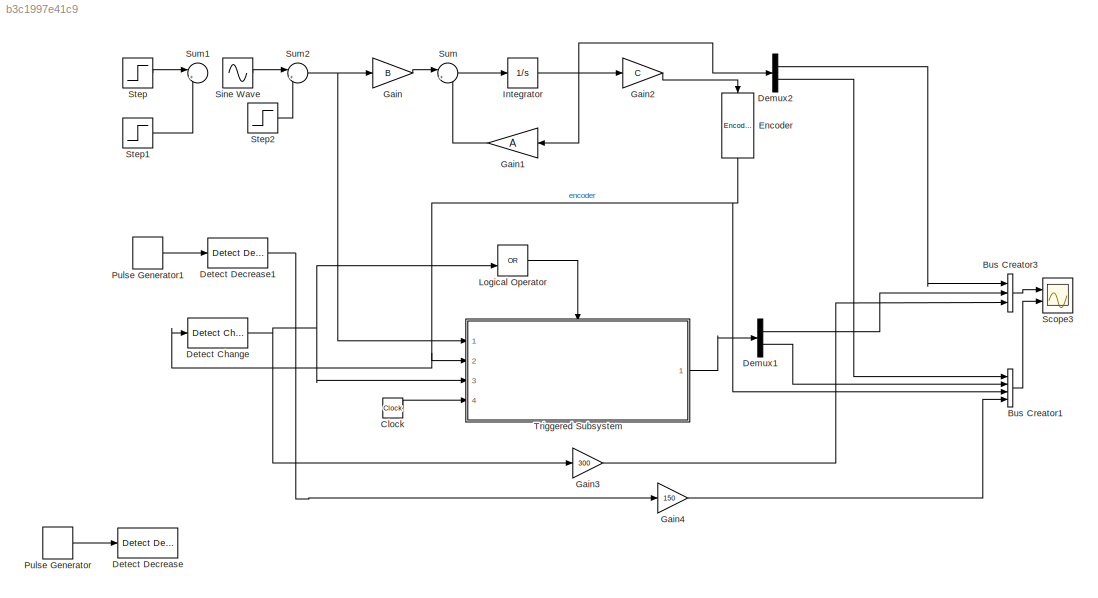
MODEL slx_b3c1997e41c9
KIND model
BLOCK [BusCreator] Bus Creator1
  DisplayOption = bar
  Ports = [4, 1]
BLOCK [BusCreator] Bus Creator3
  DisplayOption = bar
  Inputs = 3
  Ports = [3, 1]
BLOCK [Clock] Clock
BLOCK [Demux] Demux1
  DisplayOption = bar
  Outputs = 2
  Ports = [1, 2]
BLOCK [Demux] Demux2
  DisplayOption = bar
  Outputs = 2
  Ports = [1, 2]
BLOCK [Reference] Detect Change  REF=simulink/Logic and Bit
Operations/Detect
Change
  InputProcessing = Inherited
  OutDataTypeStr = boolean
  Ports = [1, 1]
  SourceBlock = simulink/Logic and Bit\nOperations/Detect\nChange
  SourceType = Detect Change
  vinit = 0
BLOCK [Reference] Detect Decrease  REF=simulink/Logic and Bit
Operations/Detect
Decrease
  InputProcessing = Inherited
  OutDataTypeStr = boolean
  Ports = [1, 1]
  SourceBlock = simulink/Logic and Bit\nOperations/Detect\nDecrease
  SourceType = Detect Decrease
  vinit = 0.0
BLOCK [Reference] Detect Decrease1  REF=simulink/Logic and Bit
Operations/Detect
Decrease
  InputProcessing = Inherited
  OutDataTypeStr = boolean
  Ports = [1, 1]
  SourceBlock = simulink/Logic and Bit\nOperations/Detect\nDecrease
  SourceType = Detect Decrease
  vinit = 0.0
BLOCK [Reference] Encoder  REF=Encoder/Encoder
  Nr = 3
  Ports = [1, 1]
  SourceBlock = Encoder/Encoder
  SourceType = Encoder de quadratura
BLOCK [Gain] Gain
  Gain = B
  Multiplication = Matrix(K*u)
  OutDataTypeStr = Inherit: Inherit via internal rule
  ParamDataTypeStr = Inherit: Inherit via internal rule
  SaturateOnIntegerOverflow = off
BLOCK [Gain] Gain1
  Gain = A
  Multiplication = Matrix(K*u)
  OutDataTypeStr = Inherit: Inherit via internal rule
  ParamDataTypeStr = Inherit: Inherit via internal rule
  SaturateOnIntegerOverflow = off
BLOCK [Gain] Gain2
  Gain = C
  Multiplication = Matrix(K*u)
  OutDataTypeStr = Inherit: Inherit via internal rule
  ParamDataTypeStr = Inherit: Inherit via internal rule
  SaturateOnIntegerOverflow = off
BLOCK [Gain] Gain3
  Gain = 300
  OutDataTypeStr = double
  ParamDataTypeStr = Inherit: Inherit via internal rule
  SaturateOnIntegerOverflow = off
BLOCK [Gain] Gain4
  Gain = 150
  OutDataTypeStr = double
  ParamDataTypeStr = Inherit: Inherit via internal rule
  SaturateOnIntegerOverflow = off
BLOCK [Integrator] Integrator
  Ports = [1, 1]
BLOCK [Logic] Logical Operator
  AllPortsSameDT = off
  Operator = OR
  OutDataTypeStr = boolean
  Ports = [2, 1]
BLOCK [DiscretePulseGenerator] Pulse Generator
  Period = 0.5
  Ports = [0, 1]
  PulseType = Time based
  PulseWidth = 50
BLOCK [DiscretePulseGenerator] Pulse Generator1
  Period = 0.05
  Ports = [0, 1]
  PulseType = Time based
  PulseWidth = 50
BLOCK [Scope] Scope3
  DataFormat = StructureWithTime
  Floating = off
  LegendLocations = 0.91365     0.89046      0.0675    0.063707\n0.91365     0.41944      0.0675    0.083025
  LimitDataPoints = off
  NumInputPorts = 2
  Ports = [2]
  SampleTime = 0
  SaveName = ScopeData2
  ShowLegends = on
  TimeRange = 10
  YMax = 50000~5
  YMin = -35000~-5
BLOCK [Sin] Sine Wave
  Amplitude = 20
  Frequency = 0.5
  Ports = [0, 1]
  SampleTime = 0
BLOCK [Step] Step
  After = 20
  SampleTime = 0
  Time = 0
BLOCK [Step] Step1
  After = -40
  SampleTime = 0
  Time = 5
BLOCK [Step] Step2
  After = 7
  SampleTime = 0
  Time = 0
BLOCK [Sum] Sum
  IconShape = round
  InputSameDT = off
  Inputs = |++
  OutDataTypeStr = Inherit: Inherit via internal rule
  Ports = [2, 1]
  SaturateOnIntegerOverflow = off
BLOCK [Sum] Sum1
  IconShape = round
  InputSameDT = off
  Inputs = |++
  OutDataTypeStr = Inherit: Inherit via internal rule
  Ports = [2, 1]
  SaturateOnIntegerOverflow = off
BLOCK [Sum] Sum2
  IconShape = round
  InputSameDT = off
  Inputs = |++
  OutDataTypeStr = Inherit: Inherit via internal rule
  Ports = [2, 1]
  SaturateOnIntegerOverflow = off
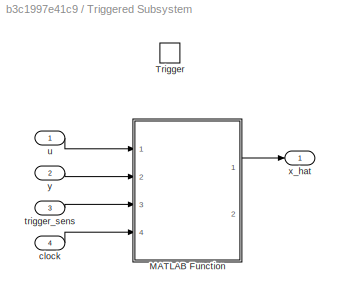
BLOCK [SubSystem] Triggered Subsystem
  FunctionWithSeparateData = off
  MaskHideContents = off
  MinAlgLoopOccurrences = off
  Opaque = off
  Ports = [4, 1, 0, 1]
  PropExecContextOutsideSubsystem = off
  RTWSystemCode = Auto
  RequestExecContextInheritance = off
  TreatAsAtomicUnit = on
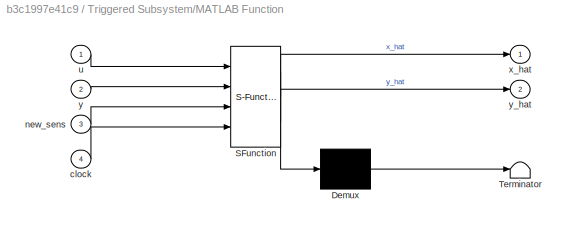
BLOCK [SubSystem] Triggered Subsystem/MATLAB Function
  ErrorFcn = Stateflow.Translate.translate
  FunctionWithSeparateData = off
  MaskHideContents = off
  MinAlgLoopOccurrences = off
  Opaque = off
  PermitHierarchicalResolution = ExplicitOnly
  Ports = [4, 2]
  PropExecContextOutsideSubsystem = off
  RTWSystemCode = Auto
  RequestExecContextInheritance = off
  SFBlockType = MATLAB Function
  TreatAsAtomicUnit = on
BLOCK [Demux] Triggered Subsystem/MATLAB Function/ Demux 
  Outputs = 1
  Ports = [1, 1]
BLOCK [S-Function] Triggered Subsystem/MATLAB Function/ SFunction 
  EnableBusSupport = on
  FunctionName = sf_sfun
  PortCounts = [4 3]
  Ports = [4, 3]
  Tag = Stateflow S-Function observador_multirate_4 2
BLOCK [Terminator] Triggered Subsystem/MATLAB Function/ Terminator 
BLOCK [Inport] Triggered Subsystem/MATLAB Function/clock
  IconDisplay = Port number
  Port = 4
BLOCK [Inport] Triggered Subsystem/MATLAB Function/new_sens
  IconDisplay = Port number
  Port = 3
BLOCK [Inport] Triggered Subsystem/MATLAB Function/u
  IconDisplay = Port number
BLOCK [Outport] Triggered Subsystem/MATLAB Function/x_hat
  IconDisplay = Port number
BLOCK [Inport] Triggered Subsystem/MATLAB Function/y
  IconDisplay = Port number
  Port = 2
BLOCK [Outport] Triggered Subsystem/MATLAB Function/y_hat
  IconDisplay = Port number
  Port = 2
BLOCK [TriggerPort] Triggered Subsystem/Trigger
  Ports = []
  StatesWhenEnabling = held
BLOCK [Inport] Triggered Subsystem/clock
  IconDisplay = Port number
  Port = 4
BLOCK [Inport] Triggered Subsystem/trigger_sens
  IconDisplay = Port number
  Port = 3
BLOCK [Inport] Triggered Subsystem/u
  IconDisplay = Port number
BLOCK [Outport] Triggered Subsystem/x_hat
  IconDisplay = Port number
BLOCK [Inport] Triggered Subsystem/y
  IconDisplay = Port number
  Port = 2
LINE Bus Creator1:1 -> Scope3:2
LINE Bus Creator3:1 -> Scope3:1
LINE Clock:1 -> Triggered Subsystem:4
LINE Demux1:1 -> Bus Creator3:2
LINE Demux1:2 -> Bus Creator1:2
LINE Demux2:1 -> Bus Creator3:1
LINE Demux2:2 -> Bus Creator1:1
NET Detect Change:1 -> Gain3:1, Logical Operator:2, Triggered Subsystem:3
LINE Detect Decrease1:1 -> Gain4:1
NET Encoder:1 -> Bus Creator1:3, Detect Change:1, Triggered Subsystem:2
LINE Gain1:1 -> Sum:2
LINE Gain2:1 -> Encoder:1
LINE Gain3:1 -> Bus Creator3:3
LINE Gain4:1 -> Bus Creator1:4
LINE Gain:1 -> Sum:1
NET Integrator:1 -> Demux2:1, Gain1:1, Gain2:1
LINE Logical Operator:1 -> Triggered Subsystem:trigger
LINE Pulse Generator1:1 -> Detect Decrease1:1
LINE Pulse Generator:1 -> Detect Decrease:1
LINE Sine Wave:1 -> Sum2:1
LINE Step1:1 -> Sum1:2
LINE Step2:1 -> Sum2:2
LINE Step:1 -> Sum1:1
NET Sum2:1 -> Gain:1, Triggered Subsystem:1
LINE Sum:1 -> Integrator:1
LINE Triggered Subsystem/MATLAB Function:1 -> Triggered Subsystem/x_hat:1
LINE Triggered Subsystem/clock:1 -> Triggered Subsystem/MATLAB Function:4
LINE Triggered Subsystem/trigger_sens:1 -> Triggered Subsystem/MATLAB Function:3
LINE Triggered Subsystem/u:1 -> Triggered Subsystem/MATLAB Function:1
LINE Triggered Subsystem/y:1 -> Triggered Subsystem/MATLAB Function:2
LINE Triggered Subsystem:1 -> Demux1:1
note: NET lines group one-source signal fan-out (src -> all destinations, sorted); 1:1 wires keep LINE
